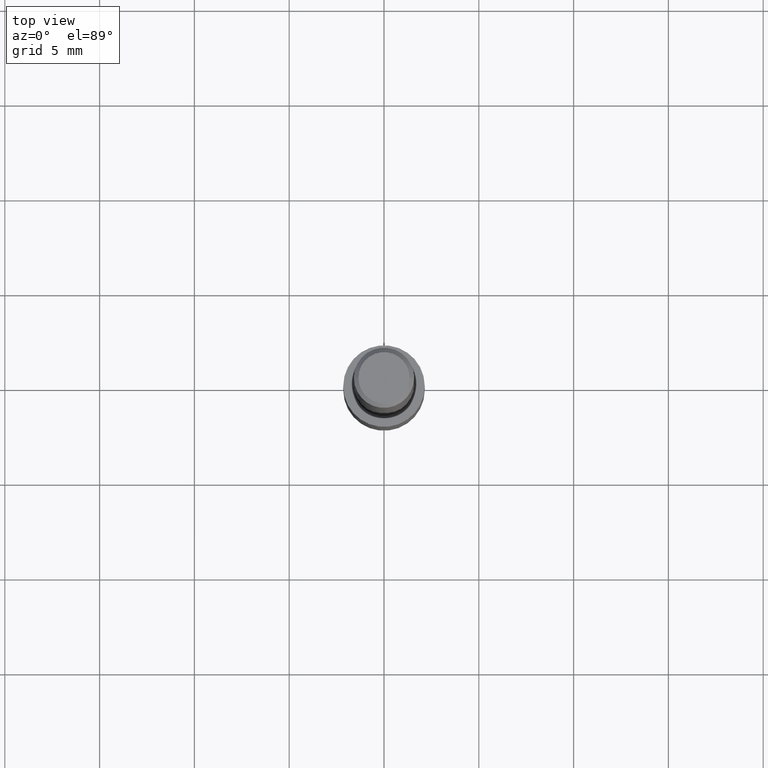
[diagram: clean part render]
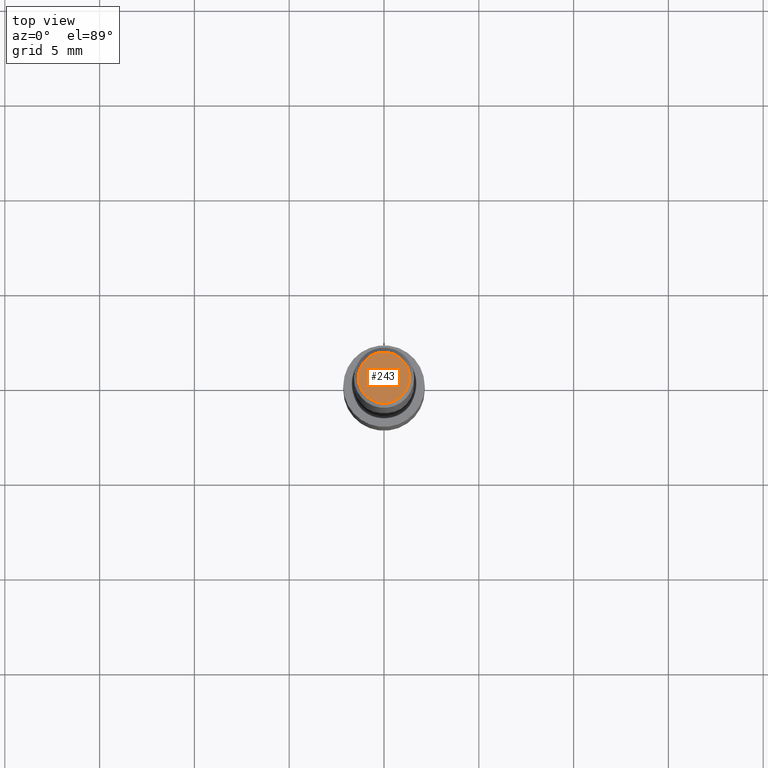
[diagram: same view with one face highlighted and labeled with its STEP entity id]
A machine part, top view. The second image highlights one B-rep face of the part: STEP entity #243.
In plain terms, the highlighted planar face has unit normal (0, -0, -1).
Its self-contained STEP definition (entity closure, byte-faithful):
#24 = VERTEX_POINT ( 'NONE', #231 ) ;
#31 = AXIS2_PLACEMENT_3D ( 'NONE', #131, #125, #316 ) ;
#72 = DIRECTION ( 'NONE',  ( -2.445468806185136597E-29, 3.491481338843145583E-15, 1.000000000000000000 ) ) ;
#73 = CARTESIAN_POINT ( 'NONE',  ( -7.487088864773345706E-50, 1.068957861474247695E-35, 3.061616997868395197E-21 ) ) ;
#83 = ORIENTED_EDGE ( 'NONE', *, *, #159, .T. ) ;
#87 = VERTEX_POINT ( 'NONE', #152 ) ;
#90 = DIRECTION ( 'NONE',  ( 1.000000000000000000, -6.982962677686266711E-15, 4.876176628004948512E-29 ) ) ;
#102 = DIRECTION ( 'NONE',  ( 1.000000000000000000, -6.982962677686266711E-15, 4.876176628004948512E-29 ) ) ;
#103 = EDGE_LOOP ( 'NONE', ( #148, #83 ) ) ;
#104 = AXIS2_PLACEMENT_3D ( 'NONE', #163, #72, #102 ) ;
#125 = DIRECTION ( 'NONE',  ( 2.438088387897960049E-29, -3.491481338843145188E-15, -1.000000000000000000 ) ) ;
#131 = CARTESIAN_POINT ( 'NONE',  ( -3.743544432386672853E-50, 5.344789307371238476E-36, 1.530808498934197599E-21 ) ) ;
#148 = ORIENTED_EDGE ( 'NONE', *, *, #191, .T. ) ;
#152 = CARTESIAN_POINT ( 'NONE',  ( 0.05312499999999999861, -4.129888592719939842E-16, 3.061617000609493422E-21 ) ) ;
#159 = EDGE_CURVE ( 'NONE', #87, #24, #218, .T. ) ;
#163 = CARTESIAN_POINT ( 'NONE',  ( -7.487088864773345706E-50, 1.068957861474247695E-35, 3.061616997868395197E-21 ) ) ;
#187 = FACE_OUTER_BOUND ( 'NONE', #103, .T. ) ;
#189 = AXIS2_PLACEMENT_3D ( 'NONE', #73, #272, #90 ) ;
#191 = EDGE_CURVE ( 'NONE', #24, #87, #312, .T. ) ;
#218 = CIRCLE ( 'NONE', #104, 0.05312499999999999861 ) ;
#231 = CARTESIAN_POINT ( 'NONE',  ( -0.05312499999999999861, 3.873362110279099094E-16, 3.061616995216862494E-21 ) ) ;
#243 = ADVANCED_FACE ( 'NONE', ( #187 ), #335, .F. ) ;
#272 = DIRECTION ( 'NONE',  ( -2.445468806185136597E-29, 3.491481338843145583E-15, 1.000000000000000000 ) ) ;
#312 = CIRCLE ( 'NONE', #189, 0.05312499999999999861 ) ;
#316 = DIRECTION ( 'NONE',  ( -1.000000000000000000, 6.982962677686265922E-15, -4.876176775795935793E-29 ) ) ;
#335 = PLANE ( 'NONE',  #31 ) ;